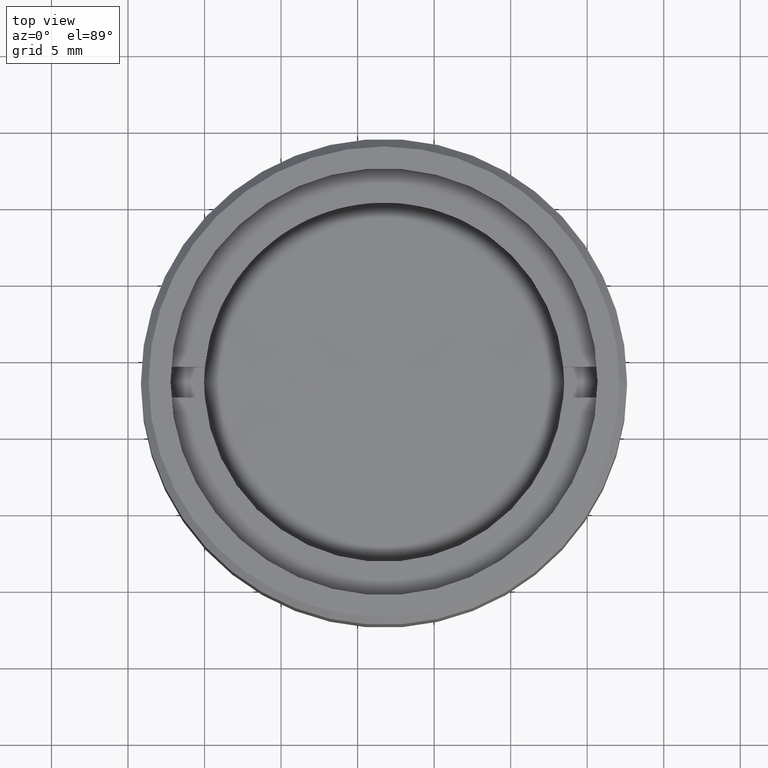
[diagram: clean part render]
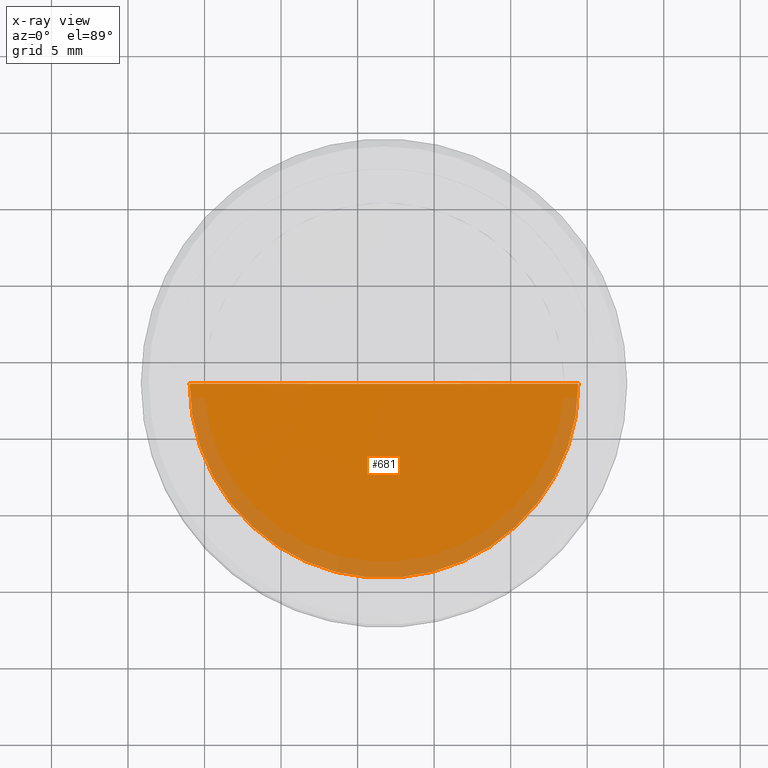
[diagram: x-ray — body ghosted, one internal face saturated and labeled with its STEP entity id]
A machine part, top view, then the same camera in x-ray: the body is ghosted and one INTERNAL B-rep face — a face not visible from any outside direction — is saturated and labeled: STEP entity #681.
In plain terms, the highlighted spherical surface has radius 181.6 mm.
Its self-contained STEP definition (entity closure, byte-faithful):
#82 = EDGE_CURVE ( 'NONE', #1607, #537, #915, .T. ) ;
#169 = AXIS2_PLACEMENT_3D ( 'NONE', #317, #1503, #955 ) ;
#193 = DIRECTION ( 'NONE',  ( -1.000000000000000000, -1.224646799147351975E-16, 0.000000000000000000 ) ) ;
#317 = CARTESIAN_POINT ( 'NONE',  ( 1.088519745157284080E-16, 0.000000000000000000, -3.555375299768570141 ) ) ;
#432 = DIRECTION ( 'NONE',  ( -1.224646799147351975E-16, 1.000000000000000000, -3.749399456654645388E-33 ) ) ;
#507 = CARTESIAN_POINT ( 'NONE',  ( 12.69999999999999929, 1.555301434917139813E-15, -3.555375299768570141 ) ) ;
#537 = VERTEX_POINT ( 'NONE', #1006 ) ;
#574 = CIRCLE ( 'NONE', #793, 181.6000000000000227 ) ;
#589 = ORIENTED_EDGE ( 'NONE', *, *, #82, .T. ) ;
#616 = EDGE_LOOP ( 'NONE', ( #844, #589 ) ) ;
#681 = ADVANCED_FACE ( 'NONE', ( #769 ), #1295, .T. ) ;
#759 = AXIS2_PLACEMENT_3D ( 'NONE', #1154, #1680, #1029 ) ;
#769 = FACE_OUTER_BOUND ( 'NONE', #616, .T. ) ;
#793 = AXIS2_PLACEMENT_3D ( 'NONE', #1227, #432, #193 ) ;
#844 = ORIENTED_EDGE ( 'NONE', *, *, #1502, .F. ) ;
#915 = CIRCLE ( 'NONE', #169, 12.69999999999999929 ) ;
#955 = DIRECTION ( 'NONE',  ( -1.000000000000000000, 0.000000000000000000, -3.414809992080329023E-17 ) ) ;
#1006 = CARTESIAN_POINT ( 'NONE',  ( -12.69999999999999929, 0.000000000000000000, -3.555375299768570141 ) ) ;
#1029 = DIRECTION ( 'NONE',  ( -1.000000000000000000, 0.000000000000000000, 0.000000000000000000 ) ) ;
#1154 = CARTESIAN_POINT ( 'NONE',  ( 0.000000000000000000, 0.000000000000000000, 177.5999999999999943 ) ) ;
#1227 = CARTESIAN_POINT ( 'NONE',  ( 0.000000000000000000, 0.000000000000000000, 177.5999999999999943 ) ) ;
#1295 = SPHERICAL_SURFACE ( 'NONE', #759, 181.6000000000000227 ) ;
#1502 = EDGE_CURVE ( 'NONE', #1607, #537, #574, .T. ) ;
#1503 = DIRECTION ( 'NONE',  ( 3.414809992080329639E-17, 0.000000000000000000, -1.000000000000000000 ) ) ;
#1607 = VERTEX_POINT ( 'NONE', #507 ) ;
#1680 = DIRECTION ( 'NONE',  ( 0.000000000000000000, -0.000000000000000000, 1.000000000000000000 ) ) ;